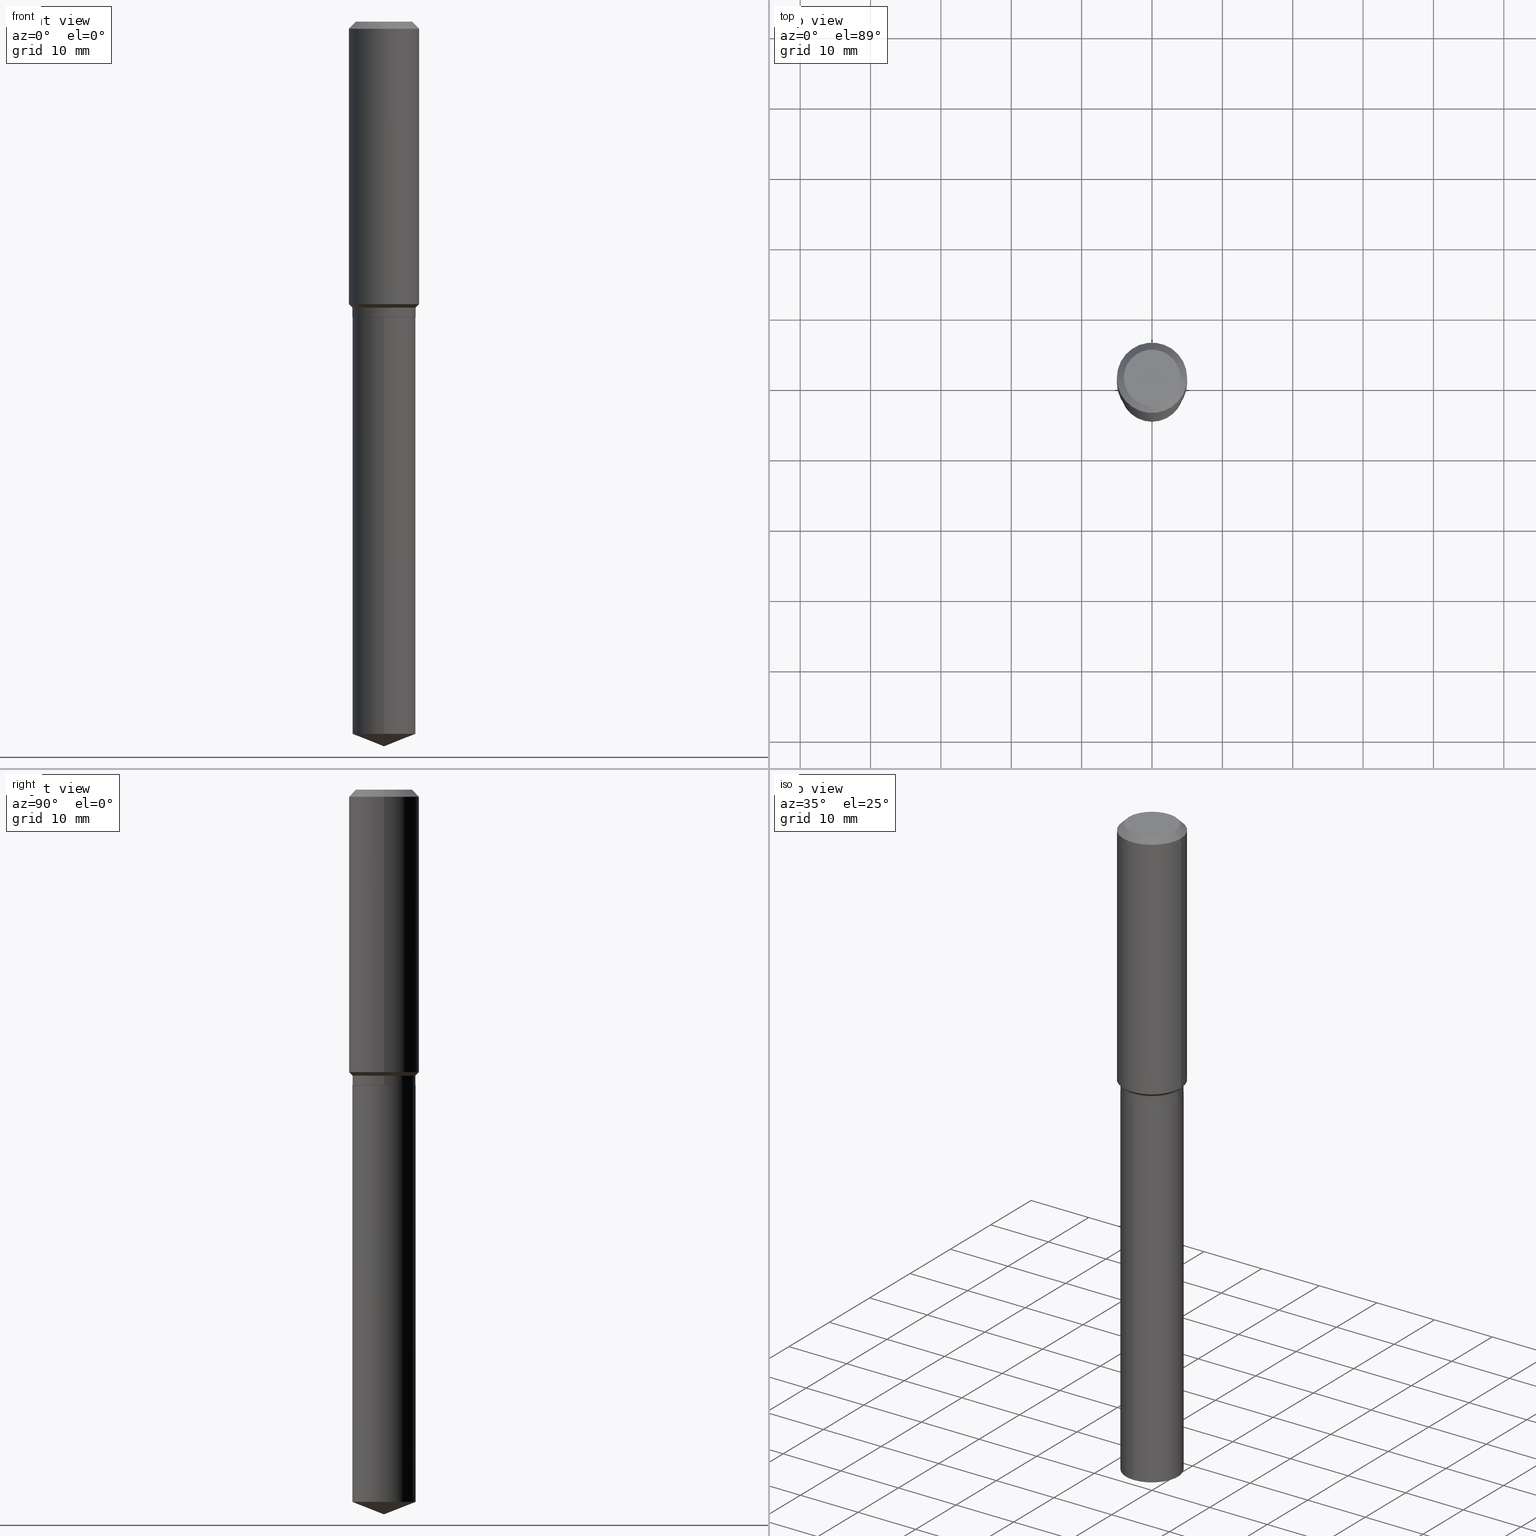
[diagram: canonical four-view strip — front | top / right | iso, engineering-drawing reading convention]
A machine part, canonical four-view strip (front | top / right | iso — engineering-drawing reading convention). The complete STEP part file that produces these views, byte-faithful:
ISO-10303-21;
HEADER;
FILE_DESCRIPTION (( 'STEP AP203' ),
    '1' );
FILE_NAME ('66563.STEP',
    '2024-04-25T01:01:27',
    ( '' ),
    ( '' ),
    'SwSTEP 2.0',
    'SolidWorks 2023',
    '' );
FILE_SCHEMA (( 'CONFIG_CONTROL_DESIGN' ));
ENDSEC;

DATA;
#1 = ORIENTED_EDGE ( 'NONE', *, *, #178, .T. ) ;
#2 = DIRECTION ( 'NONE',  ( -2.445468806185136597E-29, 3.491481338843145583E-15, 1.000000000000000000 ) ) ;
#3 = EDGE_CURVE ( 'NONE', #77, #448, #380, .T. ) ;
#4 = AXIS2_PLACEMENT_3D ( 'NONE', #382, #31, #233 ) ;
#5 = CARTESIAN_POINT ( 'NONE',  ( 1.258726456399115114E-15, 0.1771499999999861519, -3.985218759244814279 ) ) ;
#6 = ORIENTED_EDGE ( 'NONE', *, *, #159, .F. ) ;
#7 = CARTESIAN_POINT ( 'NONE',  ( 3.864329807533752585E-29, -5.517238811639938393E-15, -1.580200000000000049 ) ) ;
#8 = EDGE_CURVE ( 'NONE', #40, #281, #487, .T. ) ;
#9 = CARTESIAN_POINT ( 'NONE',  ( -0.1771500000000000019, 1.258726456399017493E-15, -8.713893512386565325E-30 ) ) ;
#10 = PERSON_AND_ORGANIZATION ( #150, #231 ) ;
#11 = LINE ( 'NONE', #387, #141 ) ;
#12 = AXIS2_PLACEMENT_3D ( 'NONE', #339, #135, #405 ) ;
#13 = EDGE_CURVE ( 'NONE', #16, #448, #262, .T. ) ;
#14 = PERSON_AND_ORGANIZATION ( #150, #231 ) ;
#15 = CALENDAR_DATE ( 2024, 24, 4 ) ;
#16 = VERTEX_POINT ( 'NONE', #193 ) ;
#17 = DIRECTION ( 'NONE',  ( -0.7071067811864267805, 7.493145998869918709E-15, 0.7071067811866682540 ) ) ;
#18 = FACE_OUTER_BOUND ( 'NONE', #263, .T. ) ;
#19 = DIRECTION ( 'NONE',  ( -2.445468806185136597E-29, 3.491481338843145583E-15, 1.000000000000000000 ) ) ;
#20 = EDGE_CURVE ( 'NONE', #321, #448, #410, .T. ) ;
#21 = DIRECTION ( 'NONE',  ( -6.497071151882121414E-15, -0.9304175679820246847, 0.3665012267242966360 ) ) ;
#22 = VECTOR ( 'NONE', #119, 39.37007874015748143 ) ;
#23 = CIRCLE ( 'NONE', #230, 0.1771500000000000019 ) ;
#24 = DIRECTION ( 'NONE',  ( 1.000000000000000000, -6.982962677686266711E-15, 4.876176775795935793E-29 ) ) ;
#25 = DIRECTION ( 'NONE',  ( -6.982962677686265922E-15, -1.000000000000000000, 3.084220145260246224E-15 ) ) ;
#26 = CARTESIAN_POINT ( 'NONE',  ( 9.627810689950954155E-31, -1.374596203102556547E-16, -0.03937000000000029365 ) ) ;
#27 = DIRECTION ( 'NONE',  ( -1.000000000000000000, 6.982962677686265922E-15, -4.876176775795935793E-29 ) ) ;
#28 = ADVANCED_FACE ( 'NONE', ( #376 ), #154, .F. ) ;
#29 = DIRECTION ( 'NONE',  ( 2.445490024045987214E-29, -3.491450953658761522E-15, -1.000000000000000000 ) ) ;
#30 = ORIENTED_EDGE ( 'NONE', *, *, #462, .F. ) ;
#31 = DIRECTION ( 'NONE',  ( -2.445468806185136597E-29, 3.491481338843145583E-15, 1.000000000000000000 ) ) ;
#32 = CC_DESIGN_APPROVAL ( #363, ( #35 ) ) ;
#33 = CONICAL_SURFACE ( 'NONE', #76, 0.1771500000000000019, 0.7853981633974518317 ) ;
#34 = ORIENTED_EDGE ( 'NONE', *, *, #13, .T. ) ;
#35 = SECURITY_CLASSIFICATION ( '', '', #404 ) ;
#36 = DIRECTION ( 'NONE',  ( -2.438088387897960049E-29, 3.491481338843145188E-15, 1.000000000000000000 ) ) ;
#37 = EDGE_LOOP ( 'NONE', ( #488, #41 ) ) ;
#38 = LINE ( 'NONE', #384, #181 ) ;
#39 = CIRCLE ( 'NONE', #105, 0.1771500000000000019 ) ;
#40 = VERTEX_POINT ( 'NONE', #412 ) ;
#41 = ORIENTED_EDGE ( 'NONE', *, *, #62, .F. ) ;
#42 = PERSON_AND_ORGANIZATION_ROLE ( 'creator' ) ;
#43 = DIRECTION ( 'NONE',  ( 1.000000000000000000, -6.982962677686266711E-15, 4.876176775795935793E-29 ) ) ;
#44 = VERTEX_POINT ( 'NONE', #286 ) ;
#45 = DIRECTION ( 'NONE',  ( 0.000000000000000000, 0.000000000000000000, 1.000000000000000000 ) ) ;
#46 = DIMENSIONAL_EXPONENTS ( 1.000000000000000000, 0.000000000000000000, 0.000000000000000000, 0.000000000000000000, 0.000000000000000000, 0.000000000000000000, 0.000000000000000000 ) ;
#47 = EDGE_LOOP ( 'NONE', ( #68, #453, #201, #153 ) ) ;
#48 = CIRCLE ( 'NONE', #386, 0.1771500000000000019 ) ;
#49 = AXIS2_PLACEMENT_3D ( 'NONE', #317, #103, #25 ) ;
#50 = ORIENTED_EDGE ( 'NONE', *, *, #106, .T. ) ;
#51 = PERSON_AND_ORGANIZATION_ROLE ( 'design_owner' ) ;
#52 = CARTESIAN_POINT ( 'NONE',  ( 9.916462662755118190E-29, -1.415783361708627607E-14, -4.054999999999999716 ) ) ;
#53 = CARTESIAN_POINT ( 'NONE',  ( 0.1968500000000000250, -1.487948651171581601E-15, -0.03937000000000029365 ) ) ;
#54 = FACE_OUTER_BOUND ( 'NONE', #236, .T. ) ;
#55 = PERSON_AND_ORGANIZATION ( #150, #231 ) ;
#56 = CIRCLE ( 'NONE', #237, 0.1968500000000000250 ) ;
#57 = PRODUCT_DEFINITION_SHAPE ( 'NONE', 'NONE',  #420 ) ;
#58 = PERSON_AND_ORGANIZATION ( #150, #231 ) ;
#59 = DIRECTION ( 'NONE',  ( 1.000000000000000000, -6.982962677686266711E-15, 0.000000000000000000 ) ) ;
#60 = DIRECTION ( 'NONE',  ( 1.000000000000000000, -6.982962677686265922E-15, 0.000000000000000000 ) ) ;
#61 = VERTEX_POINT ( 'NONE', #5 ) ;
#62 = EDGE_CURVE ( 'NONE', #300, #188, #318, .T. ) ;
#63 = DIRECTION ( 'NONE',  ( -2.445468806185136597E-29, 3.491481338843145583E-15, 1.000000000000000000 ) ) ;
#64 = FACE_OUTER_BOUND ( 'NONE', #47, .T. ) ;
#65 = CONICAL_SURFACE ( 'NONE', #114, 0.1771500000000000019, 0.7853981633974518317 ) ;
#66 = CARTESIAN_POINT ( 'NONE',  ( 3.912505543015600443E-29, -5.586020994015148789E-15, -1.599900000000000100 ) ) ;
#67 = AXIS2_PLACEMENT_3D ( 'NONE', #151, #266, #409 ) ;
#68 = ORIENTED_EDGE ( 'NONE', *, *, #159, .T. ) ;
#69 = EDGE_CURVE ( 'NONE', #482, #77, #278, .T. ) ;
#70 = CYLINDRICAL_SURFACE ( 'NONE', #81, 0.1968500000000001082 ) ;
#71 = VERTEX_POINT ( 'NONE', #454 ) ;
#72 = DIRECTION ( 'NONE',  ( -1.000000000000000000, 6.982962677686265922E-15, 0.000000000000000000 ) ) ;
#73 = CC_DESIGN_PERSON_AND_ORGANIZATION_ASSIGNMENT ( #139, #98, ( #280 ) ) ;
#74 = DIRECTION ( 'NONE',  ( -2.445468806185136597E-29, 3.491481338843145583E-15, 1.000000000000000000 ) ) ;
#75 = VECTOR ( 'NONE', #486, 39.37007874015748143 ) ;
#76 = AXIS2_PLACEMENT_3D ( 'NONE', #299, #398, #366 ) ;
#77 = VERTEX_POINT ( 'NONE', #393 ) ;
#78 = CARTESIAN_POINT ( 'NONE',  ( -0.1968500000000002192, -4.118535436296179028E-15, -1.580200000000000049 ) ) ;
#79 = EDGE_CURVE ( 'NONE', #61, #388, #11, .T. ) ;
#80 = CC_DESIGN_PERSON_AND_ORGANIZATION_ASSIGNMENT ( #91, #42, ( #420 ) ) ;
#81 = AXIS2_PLACEMENT_3D ( 'NONE', #455, #19, #24 ) ;
#82 = ADVANCED_FACE ( 'NONE', ( #125 ), #284, .T. ) ;
#83 = APPLICATION_CONTEXT ( 'configuration controlled 3d designs of mechanical parts and assemblies' ) ;
#84 = ORIENTED_EDGE ( 'NONE', *, *, #20, .F. ) ;
#85 = DIRECTION ( 'NONE',  ( 1.000000000000000000, -6.982962677686269866E-15, 0.000000000000000000 ) ) ;
#86 = DATE_AND_TIME ( #428, #441 ) ;
#87 = DIRECTION ( 'NONE',  ( 1.000000000000000000, -6.982962677686265922E-15, 0.000000000000000000 ) ) ;
#88 = APPROVAL ( #431, 'UNSPECIFIED' ) ;
#89 = ORIENTED_EDGE ( 'NONE', *, *, #79, .T. ) ;
#90 = DIRECTION ( 'NONE',  ( -2.445468806185136597E-29, 3.491481338843145583E-15, 1.000000000000000000 ) ) ;
#91 = PERSON_AND_ORGANIZATION ( #150, #231 ) ;
#92 = CYLINDRICAL_SURFACE ( 'NONE', #253, 0.1771500000000000019 ) ;
#93 = APPROVAL_DATE_TIME ( #362, #88 ) ;
#94 = ORIENTED_EDGE ( 'NONE', *, *, #241, .T. ) ;
#95 = ORIENTED_EDGE ( 'NONE', *, *, #113, .T. ) ;
#96 = AXIS2_PLACEMENT_3D ( 'NONE', #374, #338, #27 ) ;
#97 = DIRECTION ( 'NONE',  ( 1.000000000000000000, -6.982962677686265922E-15, 4.876223630392693006E-29 ) ) ;
#98 = PERSON_AND_ORGANIZATION_ROLE ( 'design_supplier' ) ;
#99 = EDGE_LOOP ( 'NONE', ( #109, #424, #1, #116 ) ) ;
#100 =( LENGTH_UNIT ( ) NAMED_UNIT ( * ) SI_UNIT ( $, .METRE. ) );
#101 = CARTESIAN_POINT ( 'NONE',  ( 4.042115389743411055E-29, -5.771069504973833690E-15, -1.652899999999999814 ) ) ;
#102 = CARTESIAN_POINT ( 'NONE',  ( 9.745777637762988078E-29, -1.391424607636795182E-14, -3.985218759244813391 ) ) ;
#103 = DIRECTION ( 'NONE',  ( -2.445490024045987495E-29, 3.491450953658761522E-15, 1.000000000000000000 ) ) ;
#104 = AXIS2_PLACEMENT_3D ( 'NONE', #7, #2, #87 ) ;
#105 = AXIS2_PLACEMENT_3D ( 'NONE', #477, #147, #145 ) ;
#106 = EDGE_CURVE ( 'NONE', #71, #61, #127, .T. ) ;
#107 = FACE_OUTER_BOUND ( 'NONE', #124, .T. ) ;
#108 = APPLICATION_CONTEXT ( 'configuration controlled 3d designs of mechanical parts and assemblies' ) ;
#109 = ORIENTED_EDGE ( 'NONE', *, *, #202, .F. ) ;
#110 = DIRECTION ( 'NONE',  ( -2.445490024045987495E-29, 3.491450953658761522E-15, 1.000000000000000000 ) ) ;
#111 = FACE_OUTER_BOUND ( 'NONE', #416, .T. ) ;
#112 = ADVANCED_FACE ( 'NONE', ( #356 ), #469, .T. ) ;
#113 = EDGE_CURVE ( 'NONE', #44, #321, #221, .T. ) ;
#114 = AXIS2_PLACEMENT_3D ( 'NONE', #66, #372, #337 ) ;
#115 = AXIS2_PLACEMENT_3D ( 'NONE', #346, #36, #478 ) ;
#116 = ORIENTED_EDGE ( 'NONE', *, *, #8, .F. ) ;
#117 = ORIENTED_EDGE ( 'NONE', *, *, #473, .T. ) ;
#118 =( CONVERSION_BASED_UNIT ( 'INCH', #176 ) LENGTH_UNIT ( ) NAMED_UNIT ( #46 ) );
#119 = DIRECTION ( 'NONE',  ( -0.7071067811865450192, 2.468850131082230634E-15, -0.7071067811865500152 ) ) ;
#120 = ORIENTED_EDGE ( 'NONE', *, *, #259, .T. ) ;
#121 = APPLICATION_PROTOCOL_DEFINITION ( 'international standard', 'config_control_design', 1994, #83 ) ;
#122 = CARTESIAN_POINT ( 'NONE',  ( 4.043338124146504977E-29, -5.772815245643255982E-15, -1.653399999999999981 ) ) ;
#123 = CIRCLE ( 'NONE', #222, 0.1766500000000000015 ) ;
#124 = EDGE_LOOP ( 'NONE', ( #408, #169, #274, #244 ) ) ;
#125 = FACE_OUTER_BOUND ( 'NONE', #275, .T. ) ;
#126 = APPROVAL_ROLE ( '' ) ;
#127 = LINE ( 'NONE', #52, #290 ) ;
#128 = DIRECTION ( 'NONE',  ( -2.445468806185136597E-29, 3.491481338843145583E-15, 1.000000000000000000 ) ) ;
#129 = ORIENTED_EDGE ( 'NONE', *, *, #259, .F. ) ;
#130 = UNCERTAINTY_MEASURE_WITH_UNIT (LENGTH_MEASURE( 1.000000000000000082E-05 ), #118, 'distance_accuracy_value', 'NONE');
#131 = VECTOR ( 'NONE', #471, 39.37007874015748143 ) ;
#132 = APPROVAL_PERSON_ORGANIZATION ( #10, #425, #126 ) ;
#133 = CARTESIAN_POINT ( 'NONE',  ( 3.864329807533752585E-29, -5.517238811639938393E-15, -1.580200000000000049 ) ) ;
#134 = DIRECTION ( 'NONE',  ( 1.000000000000000000, 0.000000000000000000, 0.000000000000000000 ) ) ;
#135 = DIRECTION ( 'NONE',  ( -2.445490024045987495E-29, 3.491450953658761522E-15, 1.000000000000000000 ) ) ;
#136 = DATE_TIME_ROLE ( 'classification_date' ) ;
#137 = LINE ( 'NONE', #373, #224 ) ;
#138 = CARTESIAN_POINT ( 'NONE',  ( -9.427742298522567634E-47, 1.346031739168368355E-32, 3.855188123715870730E-18 ) ) ;
#139 = PERSON_AND_ORGANIZATION ( #150, #231 ) ;
#140 = ORIENTED_EDGE ( 'NONE', *, *, #220, .T. ) ;
#141 = VECTOR ( 'NONE', #164, 39.37007874015748143 ) ;
#142 = FACE_OUTER_BOUND ( 'NONE', #225, .T. ) ;
#143 = CIRCLE ( 'NONE', #392, 0.1574800000000000089 ) ;
#144 = PERSON_AND_ORGANIZATION_ROLE ( 'classification_officer' ) ;
#145 = DIRECTION ( 'NONE',  ( -6.982962677686265922E-15, -1.000000000000000000, 3.084220145260246224E-15 ) ) ;
#146 = CARTESIAN_POINT ( 'NONE',  ( -1.237031838352081570E-15, -0.1771500000000057751, -1.653399999999999093 ) ) ;
#147 = DIRECTION ( 'NONE',  ( -2.445490024045987495E-29, 3.491450953658761522E-15, 1.000000000000000000 ) ) ;
#148 = ORIENTED_EDGE ( 'NONE', *, *, #383, .T. ) ;
#149 = CARTESIAN_POINT ( 'NONE',  ( -0.1766500000000000015, -4.514992275748927201E-15, -1.653399999999999981 ) ) ;
#150 = PERSON ( 'UNSPECIFIED', 'UNSPECIFIED', 'UNSPECIFIED', ('UNSPECIFIED'), ('UNSPECIFIED'), ('UNSPECIFIED') ) ;
#151 = CARTESIAN_POINT ( 'NONE',  ( 4.043338124146503856E-29, -5.772815245643255193E-15, -1.653399999999999537 ) ) ;
#152 = CARTESIAN_POINT ( 'NONE',  ( 4.043338124146503856E-29, -5.772815245643255193E-15, -1.653399999999999537 ) ) ;
#153 = ORIENTED_EDGE ( 'NONE', *, *, #473, .F. ) ;
#154 = PLANE ( 'NONE',  #203 ) ;
#155 = CIRCLE ( 'NONE', #67, 0.1771500000000000019 ) ;
#156 = ADVANCED_FACE ( 'NONE', ( #64 ), #65, .T. ) ;
#157 = EDGE_LOOP ( 'NONE', ( #95, #166, #377, #413 ) ) ;
#158 = ORIENTED_EDGE ( 'NONE', *, *, #234, .F. ) ;
#159 = EDGE_CURVE ( 'NONE', #463, #385, #48, .T. ) ;
#160 = AXIS2_PLACEMENT_3D ( 'NONE', #403, #252, #60 ) ;
#161 = ADVANCED_FACE ( 'NONE', ( #184 ), #305, .T. ) ;
#162 = AXIS2_PLACEMENT_3D ( 'NONE', #414, #74, #442 ) ;
#163 = CC_DESIGN_APPROVAL ( #88, ( #280 ) ) ;
#164 = DIRECTION ( 'NONE',  ( -2.445490024045987775E-29, 3.491450953658761522E-15, 1.000000000000000000 ) ) ;
#165 = EDGE_CURVE ( 'NONE', #448, #77, #56, .T. ) ;
#166 = ORIENTED_EDGE ( 'NONE', *, *, #20, .T. ) ;
#167 = APPLICATION_PROTOCOL_DEFINITION ( 'international standard', 'config_control_design', 1994, #108 ) ;
#168 = DIRECTION ( 'NONE',  ( -2.445468806185136597E-29, 3.491481338843145583E-15, 1.000000000000000000 ) ) ;
#169 = ORIENTED_EDGE ( 'NONE', *, *, #69, .T. ) ;
#170 = AXIS2_PLACEMENT_3D ( 'NONE', #223, #110, #315 ) ;
#171 = COORDINATED_UNIVERSAL_TIME_OFFSET ( 5, 0, .BEHIND. ) ;
#172 = DIRECTION ( 'NONE',  ( 1.000000000000000000, -6.982962677686265922E-15, 0.000000000000000000 ) ) ;
#173 = DIRECTION ( 'NONE',  ( 1.000000000000000000, -6.982962677686269866E-15, 0.000000000000000000 ) ) ;
#174 = APPROVAL_STATUS ( 'not_yet_approved' ) ;
#175 = ORIENTED_EDGE ( 'NONE', *, *, #202, .T. ) ;
#176 = LENGTH_MEASURE_WITH_UNIT ( LENGTH_MEASURE( 0.02539999999999999897 ), #100 );
#177 = LINE ( 'NONE', #218, #417 ) ;
#178 = EDGE_CURVE ( 'NONE', #188, #281, #215, .T. ) ;
#179 = AXIS2_PLACEMENT_3D ( 'NONE', #458, #128, #43 ) ;
#180 = DIRECTION ( 'NONE',  ( 1.000000000000000000, -6.982962677686266711E-15, 4.876176775795935793E-29 ) ) ;
#181 = VECTOR ( 'NONE', #226, 39.37007874015748143 ) ;
#182 = DIRECTION ( 'NONE',  ( 1.000000000000000000, -6.982962677686266711E-15, 0.000000000000000000 ) ) ;
#183 = ADVANCED_FACE ( 'NONE', ( #18 ), #33, .T. ) ;
#184 = FACE_OUTER_BOUND ( 'NONE', #361, .T. ) ;
#185 = DIRECTION ( 'NONE',  ( -2.445468806185136877E-29, 3.491481338843145188E-15, 1.000000000000000000 ) ) ;
#186 = DIRECTION ( 'NONE',  ( -2.445468806185136597E-29, 3.491481338843145583E-15, 1.000000000000000000 ) ) ;
#187 = DIRECTION ( 'NONE',  ( 6.982962677686265922E-15, 1.000000000000000000, -3.491450953658761522E-15 ) ) ;
#188 = VERTEX_POINT ( 'NONE', #468 ) ;
#189 = FACE_OUTER_BOUND ( 'NONE', #368, .T. ) ;
#190 = CIRCLE ( 'NONE', #421, 0.1771500000000000019 ) ;
#191 = CARTESIAN_POINT ( 'NONE',  ( 4.043338124146504977E-29, -5.772815245643255982E-15, -1.653399999999999981 ) ) ;
#192 = DIRECTION ( 'NONE',  ( -2.445490024045987495E-29, 3.491450953658761522E-15, 1.000000000000000000 ) ) ;
#193 = CARTESIAN_POINT ( 'NONE',  ( -0.1574800000000000089, 1.168406772637159618E-15, 3.855188123707939751E-18 ) ) ;
#194 = ORIENTED_EDGE ( 'NONE', *, *, #79, .F. ) ;
#195 = CONICAL_SURFACE ( 'NONE', #170, 99.94676754584011746, 1.195550537616119957 ) ;
#196 = ORIENTED_EDGE ( 'NONE', *, *, #479, .T. ) ;
#197 = EDGE_CURVE ( 'NONE', #188, #300, #123, .T. ) ;
#198 = COORDINATED_UNIVERSAL_TIME_OFFSET ( 5, 0, .BEHIND. ) ;
#199 = DIRECTION ( 'NONE',  ( 6.611014441532067378E-15, 0.9304175679820272382, 0.3665012267242900301 ) ) ;
#200 = DIRECTION ( 'NONE',  ( -2.445468806185136597E-29, 3.491481338843145583E-15, 1.000000000000000000 ) ) ;
#201 = ORIENTED_EDGE ( 'NONE', *, *, #113, .F. ) ;
#202 = EDGE_CURVE ( 'NONE', #300, #40, #309, .T. ) ;
#203 = AXIS2_PLACEMENT_3D ( 'NONE', #320, #29, #187 ) ;
#204 = PRODUCT_RELATED_PRODUCT_CATEGORY ( 'detail', '', ( #357 ) ) ;
#205 = ORIENTED_EDGE ( 'NONE', *, *, #241, .F. ) ;
#206 = MECHANICAL_CONTEXT ( 'NONE', #83, 'mechanical' ) ;
#207 = APPROVAL_STATUS ( 'not_yet_approved' ) ;
#208 = DIRECTION ( 'NONE',  ( 0.7071067811865450192, -7.319954787623246579E-15, -0.7071067811865500152 ) ) ;
#209 = PLANE ( 'NONE',  #96 ) ;
#210 = PERSON_AND_ORGANIZATION ( #150, #231 ) ;
#211 = CONICAL_SURFACE ( 'NONE', #435, 0.1766500000000000015, 0.7853981633972775267 ) ;
#212 = AXIS2_PLACEMENT_3D ( 'NONE', #289, #45, #134 ) ;
#213 = CARTESIAN_POINT ( 'NONE',  ( -0.1766500000000000015, -4.517641502923039190E-15, -1.653399999999999981 ) ) ;
#214 = DIRECTION ( 'NONE',  ( -2.445468806185136597E-29, 3.491481338843145583E-15, 1.000000000000000000 ) ) ;
#215 = LINE ( 'NONE', #466, #446 ) ;
#216 = EDGE_CURVE ( 'NONE', #385, #321, #332, .T. ) ;
#217 = ORIENTED_EDGE ( 'NONE', *, *, #415, .F. ) ;
#218 = CARTESIAN_POINT ( 'NONE',  ( 9.916391884284218527E-29, -1.415793409481399778E-14, -4.054999999999999716 ) ) ;
#219 = CARTESIAN_POINT ( 'NONE',  ( -1.237031838352081570E-15, -0.1771500000000057751, -1.653399999999999093 ) ) ;
#220 = EDGE_CURVE ( 'NONE', #242, #61, #273, .T. ) ;
#221 = CIRCLE ( 'NONE', #104, 0.1968500000000002192 ) ;
#222 = AXIS2_PLACEMENT_3D ( 'NONE', #258, #328, #173 ) ;
#223 = CARTESIAN_POINT ( 'NONE',  ( -8.636270783906479342E-28, 1.233008151069932431E-13, 35.31507874015748172 ) ) ;
#224 = VECTOR ( 'NONE', #185, 39.37007874015748143 ) ;
#225 = EDGE_LOOP ( 'NONE', ( #148, #353, #6, #444 ) ) ;
#226 = DIRECTION ( 'NONE',  ( -2.445468806185136877E-29, 3.491481338843145188E-15, 1.000000000000000000 ) ) ;
#227 = EDGE_LOOP ( 'NONE', ( #240, #327 ) ) ;
#228 = CYLINDRICAL_SURFACE ( 'NONE', #4, 0.1968500000000001082 ) ;
#229 = AXIS2_PLACEMENT_3D ( 'NONE', #101, #214, #475 ) ;
#230 = AXIS2_PLACEMENT_3D ( 'NONE', #445, #192, #378 ) ;
#231 = ORGANIZATION ( 'UNSPECIFIED', 'UNSPECIFIED', '' ) ;
#232 = CARTESIAN_POINT ( 'NONE',  ( -0.1968500000000001082, 1.398703375343757985E-15, -9.682923725166787881E-30 ) ) ;
#233 = DIRECTION ( 'NONE',  ( 1.000000000000000000, -6.982962677686266711E-15, 4.876176775795935793E-29 ) ) ;
#234 = EDGE_CURVE ( 'NONE', #40, #385, #467, .T. ) ;
#235 = ADVANCED_FACE ( 'NONE', ( #142 ), #92, .T. ) ;
#236 = EDGE_LOOP ( 'NONE', ( #239, #432 ) ) ;
#237 = AXIS2_PLACEMENT_3D ( 'NONE', #296, #395, #172 ) ;
#238 = LOCAL_TIME ( 21, 1, 27.00000000000000000, #334 ) ;
#239 = ORIENTED_EDGE ( 'NONE', *, *, #246, .T. ) ;
#240 = ORIENTED_EDGE ( 'NONE', *, *, #415, .T. ) ;
#241 = EDGE_CURVE ( 'NONE', #321, #44, #399, .T. ) ;
#242 = VERTEX_POINT ( 'NONE', #294 ) ;
#243 = CONICAL_SURFACE ( 'NONE', #336, 0.1968500000000000250, 0.7853981633974447263 ) ;
#244 = ORIENTED_EDGE ( 'NONE', *, *, #13, .F. ) ;
#245 =( NAMED_UNIT ( * ) PLANE_ANGLE_UNIT ( ) SI_UNIT ( $, .RADIAN. ) );
#246 = EDGE_CURVE ( 'NONE', #16, #482, #143, .T. ) ;
#247 = DIRECTION ( 'NONE',  ( 1.000000000000000000, -6.982962677686266711E-15, 0.000000000000000000 ) ) ;
#248 = CALENDAR_DATE ( 2024, 24, 4 ) ;
#249 = CARTESIAN_POINT ( 'NONE',  ( 0.000000000000000000, 0.000000000000000000, 0.000000000000000000 ) ) ;
#250 = SHAPE_DEFINITION_REPRESENTATION ( #57, #402 ) ;
#251 = FACE_OUTER_BOUND ( 'NONE', #279, .T. ) ;
#252 = DIRECTION ( 'NONE',  ( -2.445468806185136597E-29, 3.491481338843145583E-15, 1.000000000000000000 ) ) ;
#253 = AXIS2_PLACEMENT_3D ( 'NONE', #249, #168, #180 ) ;
#254 = EDGE_CURVE ( 'NONE', #71, #242, #177, .T. ) ;
#255 = DIRECTION ( 'NONE',  ( 0.7071067811865500152, -2.468850131082282699E-15, 0.7071067811865450192 ) ) ;
#256 = EDGE_LOOP ( 'NONE', ( #84, #94, #264, #472 ) ) ;
#257 = ORIENTED_EDGE ( 'NONE', *, *, #106, .F. ) ;
#258 = CARTESIAN_POINT ( 'NONE',  ( 4.043338124146504977E-29, -5.772815245643255982E-15, -1.653399999999999981 ) ) ;
#259 = EDGE_CURVE ( 'NONE', #385, #463, #190, .T. ) ;
#260 = PERSON_AND_ORGANIZATION_ROLE ( 'creator' ) ;
#261 = ADVANCED_FACE ( 'NONE', ( #54 ), #209, .F. ) ;
#262 = LINE ( 'NONE', #365, #22 ) ;
#263 = EDGE_LOOP ( 'NONE', ( #316, #120, #117, #205 ) ) ;
#264 = ORIENTED_EDGE ( 'NONE', *, *, #326, .T. ) ;
#265 = VECTOR ( 'NONE', #255, 39.37007874015748143 ) ;
#266 = DIRECTION ( 'NONE',  ( -2.445490024045987495E-29, 3.491450953658761522E-15, 1.000000000000000000 ) ) ;
#267 = ORIENTED_EDGE ( 'NONE', *, *, #333, .F. ) ;
#268 = DIRECTION ( 'NONE',  ( 1.000000000000000000, -6.982962677686269866E-15, 0.000000000000000000 ) ) ;
#269 = EDGE_LOOP ( 'NONE', ( #257, #345, #419 ) ) ;
#270 = CYLINDRICAL_SURFACE ( 'NONE', #370, 0.1771500000000000019 ) ;
#271 = AXIS2_PLACEMENT_3D ( 'NONE', #352, #426, #85 ) ;
#272 = ADVANCED_FACE ( 'NONE', ( #107 ), #243, .T. ) ;
#273 = CIRCLE ( 'NONE', #324, 0.1771500000000000019 ) ;
#274 = ORIENTED_EDGE ( 'NONE', *, *, #3, .T. ) ;
#275 = EDGE_LOOP ( 'NONE', ( #158, #459, #291, #129 ) ) ;
#276 = DIRECTION ( 'NONE',  ( 2.445468806185136597E-29, -3.491481338843145583E-15, -1.000000000000000000 ) ) ;
#277 = CC_DESIGN_DATE_AND_TIME_ASSIGNMENT ( #423, #367, ( #420 ) ) ;
#278 = LINE ( 'NONE', #53, #369 ) ;
#279 = EDGE_LOOP ( 'NONE', ( #322, #490, #34, #347 ) ) ;
#280 = PRODUCT_DEFINITION_FORMATION_WITH_SPECIFIED_SOURCE ( 'ANY', '', #357, .NOT_KNOWN. ) ;
#281 = VERTEX_POINT ( 'NONE', #485 ) ;
#282 = CALENDAR_DATE ( 2024, 24, 4 ) ;
#283 = CIRCLE ( 'NONE', #407, 0.1771500000000000019 ) ;
#284 = CYLINDRICAL_SURFACE ( 'NONE', #179, 0.1771500000000000019 ) ;
#285 = COORDINATED_UNIVERSAL_TIME_OFFSET ( 5, 0, .BEHIND. ) ;
#286 = CARTESIAN_POINT ( 'NONE',  ( 0.1968500000000002192, -6.891835014742481579E-15, -1.580200000000000049 ) ) ;
#287 = MANIFOLD_SOLID_BREP ( 'Body-Move/Copy2[1]', #427 ) ;
#288 = EDGE_CURVE ( 'NONE', #482, #16, #381, .T. ) ;
#289 = CARTESIAN_POINT ( 'NONE',  ( 0.000000000000000000, 0.000000000000000000, 0.000000000000000000 ) ) ;
#290 = VECTOR ( 'NONE', #199, 39.37007874015748854 ) ;
#291 = ORIENTED_EDGE ( 'NONE', *, *, #449, .T. ) ;
#292 = CC_DESIGN_APPROVAL ( #425, ( #420 ) ) ;
#293 = MANIFOLD_SOLID_BREP ( 'Body-Move/Copy2[2]', #344 ) ;
#294 = CARTESIAN_POINT ( 'NONE',  ( -1.237031838352024575E-15, -0.1771500000000139075, -3.985218759244812947 ) ) ;
#295 = APPROVAL_DATE_TIME ( #86, #425 ) ;
#296 = CARTESIAN_POINT ( 'NONE',  ( 9.627810689950954155E-31, -1.374596203102556547E-16, -0.03937000000000029365 ) ) ;
#297 = ADVANCED_FACE ( 'NONE', ( #418 ), #195, .T. ) ;
#298 = APPROVAL_DATE_TIME ( #330, #363 ) ;
#299 = CARTESIAN_POINT ( 'NONE',  ( 3.912505543015600443E-29, -5.586020994015148789E-15, -1.599900000000000100 ) ) ;
#300 = VERTEX_POINT ( 'NONE', #149 ) ;
#301 = DIRECTION ( 'NONE',  ( -1.000000000000000000, 6.982962677686265922E-15, 0.000000000000000000 ) ) ;
#302 = APPROVAL_ROLE ( '' ) ;
#303 = ORIENTED_EDGE ( 'NONE', *, *, #254, .F. ) ;
#304 = LINE ( 'NONE', #219, #131 ) ;
#305 = CONICAL_SURFACE ( 'NONE', #12, 99.94676754584011746, 1.195550537616119957 ) ;
#306 = ADVANCED_FACE ( 'NONE', ( #371 ), #211, .T. ) ;
#307 = ADVANCED_FACE ( 'NONE', ( #447 ), #341, .F. ) ;
#308 = CARTESIAN_POINT ( 'NONE',  ( 0.1574800000000000089, -1.284169937930321189E-15, 3.855188123724205385E-18 ) ) ;
#309 = LINE ( 'NONE', #213, #355 ) ;
#310 = DIRECTION ( 'NONE',  ( -2.445490024045987495E-29, 3.491450953658761522E-15, 1.000000000000000000 ) ) ;
#311 = AXIS2_PLACEMENT_3D ( 'NONE', #26, #340, #301 ) ;
#312 = CARTESIAN_POINT ( 'NONE',  ( 9.627810689950954155E-31, -1.374596203102556547E-16, -0.03937000000000029365 ) ) ;
#313 = LOCAL_TIME ( 21, 1, 27.00000000000000000, #198 ) ;
#314 = FACE_OUTER_BOUND ( 'NONE', #256, .T. ) ;
#315 = DIRECTION ( 'NONE',  ( -6.982962677686265133E-15, -1.000000000000000000, 3.498627837349999095E-15 ) ) ;
#316 = ORIENTED_EDGE ( 'NONE', *, *, #216, .F. ) ;
#317 = CARTESIAN_POINT ( 'NONE',  ( 4.043338124146503856E-29, -5.772815245643255193E-15, -1.653399999999999537 ) ) ;
#318 = CIRCLE ( 'NONE', #335, 0.1766500000000000015 ) ;
#319 = CC_DESIGN_PERSON_AND_ORGANIZATION_ASSIGNMENT ( #14, #144, ( #35 ) ) ;
#320 = CARTESIAN_POINT ( 'NONE',  ( 4.043338124146503856E-29, -5.772815245643255193E-15, -1.653399999999999537 ) ) ;
#321 = VERTEX_POINT ( 'NONE', #78 ) ;
#322 = ORIENTED_EDGE ( 'NONE', *, *, #69, .F. ) ;
#323 = ADVANCED_FACE ( 'NONE', ( #111 ), #411, .T. ) ;
#324 = AXIS2_PLACEMENT_3D ( 'NONE', #102, #406, #464 ) ;
#325 = ORIENTED_EDGE ( 'NONE', *, *, #462, .T. ) ;
#326 = EDGE_CURVE ( 'NONE', #44, #77, #38, .T. ) ;
#327 = ORIENTED_EDGE ( 'NONE', *, *, #333, .T. ) ;
#328 = DIRECTION ( 'NONE',  ( -2.445468806185136597E-29, 3.491481338843145583E-15, 1.000000000000000000 ) ) ;
#329 = CARTESIAN_POINT ( 'NONE',  ( -0.1771500000000000019, -4.327294537616131099E-15, -1.599900000000000100 ) ) ;
#330 = DATE_AND_TIME ( #359, #379 ) ;
#331 = DIRECTION ( 'NONE',  ( 0.7071067811864267805, -2.468850131080992517E-15, 0.7071067811866682540 ) ) ;
#332 = LINE ( 'NONE', #329, #451 ) ;
#333 = EDGE_CURVE ( 'NONE', #388, #390, #23, .T. ) ;
#334 = COORDINATED_UNIVERSAL_TIME_OFFSET ( 5, 0, .BEHIND. ) ;
#335 = AXIS2_PLACEMENT_3D ( 'NONE', #122, #200, #354 ) ;
#336 = AXIS2_PLACEMENT_3D ( 'NONE', #312, #276, #72 ) ;
#337 = DIRECTION ( 'NONE',  ( 1.000000000000000000, -6.982962677686266711E-15, 0.000000000000000000 ) ) ;
#338 = DIRECTION ( 'NONE',  ( 2.438088387897960049E-29, -3.491481338843145188E-15, -1.000000000000000000 ) ) ;
#339 = CARTESIAN_POINT ( 'NONE',  ( -8.636270783906479342E-28, 1.233008151069932431E-13, 35.31507874015748172 ) ) ;
#340 = DIRECTION ( 'NONE',  ( 2.445468806185136597E-29, -3.491481338843145583E-15, -1.000000000000000000 ) ) ;
#341 = PLANE ( 'NONE',  #115 ) ;
#342 = CC_DESIGN_DATE_AND_TIME_ASSIGNMENT ( #465, #136, ( #35 ) ) ;
#343 = LOCAL_TIME ( 21, 1, 27.00000000000000000, #171 ) ;
#344 = CLOSED_SHELL ( 'NONE', ( #112, #272, #375, #156, #235, #82, #183, #443, #456, #261, #307, #306 ) ) ;
#345 = ORIENTED_EDGE ( 'NONE', *, *, #254, .T. ) ;
#346 = CARTESIAN_POINT ( 'NONE',  ( 2.257835294075184018E-29, -8.329756922815342463E-15, -1.653399999999999981 ) ) ;
#347 = ORIENTED_EDGE ( 'NONE', *, *, #165, .T. ) ;
#348 = FACE_OUTER_BOUND ( 'NONE', #157, .T. ) ;
#349 = ORIENTED_EDGE ( 'NONE', *, *, #383, .F. ) ;
#350 = DIRECTION ( 'NONE',  ( -2.445468806185136597E-29, 3.491481338843145583E-15, 1.000000000000000000 ) ) ;
#351 = ORIENTED_EDGE ( 'NONE', *, *, #178, .F. ) ;
#352 = CARTESIAN_POINT ( 'NONE',  ( 4.043338124146504977E-29, -5.772815245643255982E-15, -1.653399999999999981 ) ) ;
#353 = ORIENTED_EDGE ( 'NONE', *, *, #234, .T. ) ;
#354 = DIRECTION ( 'NONE',  ( 1.000000000000000000, -6.982962677686269866E-15, 0.000000000000000000 ) ) ;
#355 = VECTOR ( 'NONE', #17, 39.37007874015748143 ) ;
#356 = FACE_OUTER_BOUND ( 'NONE', #401, .T. ) ;
#357 = PRODUCT ( '66563', '66563', '', ( #206 ) ) ;
#358 = DIRECTION ( 'NONE',  ( -0.7071067811865500152, 7.493145998870363626E-15, 0.7071067811865450192 ) ) ;
#359 = CALENDAR_DATE ( 2024, 24, 4 ) ;
#360 = CARTESIAN_POINT ( 'NONE',  ( 3.912505543015600443E-29, -5.586020994015148789E-15, -1.599900000000000100 ) ) ;
#361 = EDGE_LOOP ( 'NONE', ( #303, #50, #450 ) ) ;
#362 = DATE_AND_TIME ( #248, #343 ) ;
#363 = APPROVAL ( #174, 'UNSPECIFIED' ) ;
#364 = ORIENTED_EDGE ( 'NONE', *, *, #197, .T. ) ;
#365 = CARTESIAN_POINT ( 'NONE',  ( -0.1968500000000000250, 1.237136582792286225E-15, -0.03937000000000029365 ) ) ;
#366 = DIRECTION ( 'NONE',  ( 1.000000000000000000, -6.982962677686266711E-15, 0.000000000000000000 ) ) ;
#367 = DATE_TIME_ROLE ( 'creation_date' ) ;
#368 = EDGE_LOOP ( 'NONE', ( #140, #89, #217, #30 ) ) ;
#369 = VECTOR ( 'NONE', #208, 39.37007874015748143 ) ;
#370 = AXIS2_PLACEMENT_3D ( 'NONE', #152, #310, #440 ) ;
#371 = FACE_OUTER_BOUND ( 'NONE', #99, .T. ) ;
#372 = DIRECTION ( 'NONE',  ( -2.445468806185136597E-29, 3.491481338843145583E-15, 1.000000000000000000 ) ) ;
#373 = CARTESIAN_POINT ( 'NONE',  ( 0.1771500000000000019, -1.237031838352122197E-15, 8.638147158322499960E-30 ) ) ;
#374 = CARTESIAN_POINT ( 'NONE',  ( -4.713871149261283817E-47, 6.730158695841841775E-33, 1.927594061857935365E-18 ) ) ;
#375 = ADVANCED_FACE ( 'NONE', ( #348 ), #228, .T. ) ;
#376 = FACE_OUTER_BOUND ( 'NONE', #227, .T. ) ;
#377 = ORIENTED_EDGE ( 'NONE', *, *, #3, .F. ) ;
#378 = DIRECTION ( 'NONE',  ( -6.982962677686265922E-15, -1.000000000000000000, 3.084220145260246224E-15 ) ) ;
#379 = LOCAL_TIME ( 21, 1, 27.00000000000000000, #394 ) ;
#380 = CIRCLE ( 'NONE', #160, 0.1968500000000000250 ) ;
#381 = CIRCLE ( 'NONE', #162, 0.1574800000000000089 ) ;
#382 = CARTESIAN_POINT ( 'NONE',  ( 0.000000000000000000, 0.000000000000000000, 0.000000000000000000 ) ) ;
#383 = EDGE_CURVE ( 'NONE', #281, #40, #283, .T. ) ;
#384 = CARTESIAN_POINT ( 'NONE',  ( 0.1968500000000001082, -1.374596203102542397E-15, 9.598753983154305062E-30 ) ) ;
#385 = VERTEX_POINT ( 'NONE', #483 ) ;
#386 = AXIS2_PLACEMENT_3D ( 'NONE', #360, #63, #59 ) ;
#387 = CARTESIAN_POINT ( 'NONE',  ( 1.258726456399057922E-15, 0.1771499999999942565, -1.653400000000000203 ) ) ;
#388 = VERTEX_POINT ( 'NONE', #476 ) ;
#389 =( NAMED_UNIT ( * ) SI_UNIT ( $, .STERADIAN. ) SOLID_ANGLE_UNIT ( ) );
#390 = VERTEX_POINT ( 'NONE', #146 ) ;
#391 = PERSON_AND_ORGANIZATION ( #150, #231 ) ;
#392 = AXIS2_PLACEMENT_3D ( 'NONE', #138, #434, #97 ) ;
#393 = CARTESIAN_POINT ( 'NONE',  ( 0.1968500000000000250, -1.512055823412797189E-15, -0.03937000000000029365 ) ) ;
#394 = COORDINATED_UNIVERSAL_TIME_OFFSET ( 5, 0, .BEHIND. ) ;
#395 = DIRECTION ( 'NONE',  ( -2.445468806185136597E-29, 3.491481338843145583E-15, 1.000000000000000000 ) ) ;
#396 = ADVANCED_FACE ( 'NONE', ( #189 ), #270, .T. ) ;
#397 = DIRECTION ( 'NONE',  ( 1.000000000000000000, -6.982962677686265922E-15, 0.000000000000000000 ) ) ;
#398 = DIRECTION ( 'NONE',  ( -2.445468806185136597E-29, 3.491481338843145583E-15, 1.000000000000000000 ) ) ;
#399 = CIRCLE ( 'NONE', #470, 0.1968500000000002192 ) ;
#400 = LINE ( 'NONE', #436, #265 ) ;
#401 = EDGE_LOOP ( 'NONE', ( #364, #175, #349, #351 ) ) ;
#402 = ADVANCED_BREP_SHAPE_REPRESENTATION ( '66563', ( #287, #293, #212 ), #437 ) ;
#403 = CARTESIAN_POINT ( 'NONE',  ( 9.627810689950954155E-31, -1.374596203102556547E-16, -0.03937000000000029365 ) ) ;
#404 = SECURITY_CLASSIFICATION_LEVEL ( 'unclassified' ) ;
#405 = DIRECTION ( 'NONE',  ( -6.982962677686265133E-15, -1.000000000000000000, 3.498627837349999095E-15 ) ) ;
#406 = DIRECTION ( 'NONE',  ( -2.445490024045987495E-29, 3.491450953658761522E-15, 1.000000000000000000 ) ) ;
#407 = AXIS2_PLACEMENT_3D ( 'NONE', #484, #350, #182 ) ;
#408 = ORIENTED_EDGE ( 'NONE', *, *, #288, .F. ) ;
#409 = DIRECTION ( 'NONE',  ( -6.982962677686265922E-15, -1.000000000000000000, 3.084220145260246224E-15 ) ) ;
#410 = LINE ( 'NONE', #232, #75 ) ;
#411 = CYLINDRICAL_SURFACE ( 'NONE', #49, 0.1771500000000000019 ) ;
#412 = CARTESIAN_POINT ( 'NONE',  ( -0.1771500000000000019, -4.419818793095473155E-15, -1.652899999999999814 ) ) ;
#413 = ORIENTED_EDGE ( 'NONE', *, *, #326, .F. ) ;
#414 = CARTESIAN_POINT ( 'NONE',  ( -9.427742298522567634E-47, 1.346031739168368355E-32, 3.855188123715870730E-18 ) ) ;
#415 = EDGE_CURVE ( 'NONE', #390, #388, #155, .T. ) ;
#416 = EDGE_LOOP ( 'NONE', ( #194, #196, #325, #267 ) ) ;
#417 = VECTOR ( 'NONE', #21, 39.37007874015748854 ) ;
#418 = FACE_OUTER_BOUND ( 'NONE', #269, .T. ) ;
#419 = ORIENTED_EDGE ( 'NONE', *, *, #479, .F. ) ;
#420 = PRODUCT_DEFINITION ( 'UNKNOWN', '', #280, #429 ) ;
#421 = AXIS2_PLACEMENT_3D ( 'NONE', #430, #90, #247 ) ;
#422 = APPROVAL_PERSON_ORGANIZATION ( #55, #88, #439 ) ;
#423 = DATE_AND_TIME ( #282, #313 ) ;
#424 = ORIENTED_EDGE ( 'NONE', *, *, #62, .T. ) ;
#425 = APPROVAL ( #207, 'UNSPECIFIED' ) ;
#426 = DIRECTION ( 'NONE',  ( -2.445468806185136597E-29, 3.491481338843145583E-15, 1.000000000000000000 ) ) ;
#427 = CLOSED_SHELL ( 'NONE', ( #396, #161, #297, #323, #28 ) ) ;
#428 = CALENDAR_DATE ( 2024, 24, 4 ) ;
#429 = DESIGN_CONTEXT ( 'detailed design', #108, 'design' ) ;
#430 = CARTESIAN_POINT ( 'NONE',  ( 3.912505543015600443E-29, -5.586020994015148789E-15, -1.599900000000000100 ) ) ;
#431 = APPROVAL_STATUS ( 'not_yet_approved' ) ;
#432 = ORIENTED_EDGE ( 'NONE', *, *, #288, .T. ) ;
#433 = CARTESIAN_POINT ( 'NONE',  ( 0.1771500000000000019, -6.823052832367271183E-15, -1.599900000000000100 ) ) ;
#434 = DIRECTION ( 'NONE',  ( -2.445468806185136597E-29, 3.491481338843145583E-15, 1.000000000000000000 ) ) ;
#435 = AXIS2_PLACEMENT_3D ( 'NONE', #191, #186, #268 ) ;
#436 = CARTESIAN_POINT ( 'NONE',  ( 0.1771500000000000019, -6.823052832367271183E-15, -1.599900000000000100 ) ) ;
#437 =( GEOMETRIC_REPRESENTATION_CONTEXT ( 3 ) GLOBAL_UNCERTAINTY_ASSIGNED_CONTEXT ( ( #130 ) ) GLOBAL_UNIT_ASSIGNED_CONTEXT ( ( #118, #245, #389 ) ) REPRESENTATION_CONTEXT ( 'NONE', 'WORKASPACE' ) );
#438 = DIRECTION ( 'NONE',  ( -2.445468806185136597E-29, 3.491481338843145583E-15, 1.000000000000000000 ) ) ;
#439 = APPROVAL_ROLE ( '' ) ;
#440 = DIRECTION ( 'NONE',  ( -6.982962677686265922E-15, -1.000000000000000000, 3.084220145260246224E-15 ) ) ;
#441 = LOCAL_TIME ( 21, 1, 27.00000000000000000, #285 ) ;
#442 = DIRECTION ( 'NONE',  ( 1.000000000000000000, -6.982962677686265922E-15, 4.876223630392693006E-29 ) ) ;
#443 = ADVANCED_FACE ( 'NONE', ( #314 ), #70, .T. ) ;
#444 = ORIENTED_EDGE ( 'NONE', *, *, #449, .F. ) ;
#445 = CARTESIAN_POINT ( 'NONE',  ( 4.043338124146503856E-29, -5.772815245643255193E-15, -1.653399999999999537 ) ) ;
#446 = VECTOR ( 'NONE', #331, 39.37007874015748143 ) ;
#447 = FACE_OUTER_BOUND ( 'NONE', #37, .T. ) ;
#448 = VERTEX_POINT ( 'NONE', #474 ) ;
#449 = EDGE_CURVE ( 'NONE', #281, #463, #137, .T. ) ;
#450 = ORIENTED_EDGE ( 'NONE', *, *, #220, .F. ) ;
#451 = VECTOR ( 'NONE', #358, 39.37007874015748143 ) ;
#452 = CC_DESIGN_SECURITY_CLASSIFICATION ( #35, ( #280 ) ) ;
#453 = ORIENTED_EDGE ( 'NONE', *, *, #216, .T. ) ;
#454 = CARTESIAN_POINT ( 'NONE',  ( 9.916462047506479508E-29, -1.415783361708627607E-14, -4.054999999999999716 ) ) ;
#455 = CARTESIAN_POINT ( 'NONE',  ( 0.000000000000000000, 0.000000000000000000, 0.000000000000000000 ) ) ;
#456 = ADVANCED_FACE ( 'NONE', ( #251 ), #461, .T. ) ;
#457 = CC_DESIGN_PERSON_AND_ORGANIZATION_ASSIGNMENT ( #391, #51, ( #357 ) ) ;
#458 = CARTESIAN_POINT ( 'NONE',  ( 0.000000000000000000, 0.000000000000000000, 0.000000000000000000 ) ) ;
#459 = ORIENTED_EDGE ( 'NONE', *, *, #8, .T. ) ;
#460 = DIRECTION ( 'NONE',  ( -2.445468806185136877E-29, 3.491481338843145188E-15, 1.000000000000000000 ) ) ;
#461 = CONICAL_SURFACE ( 'NONE', #311, 0.1968500000000000250, 0.7853981633974447263 ) ;
#462 = EDGE_CURVE ( 'NONE', #242, #390, #304, .T. ) ;
#463 = VERTEX_POINT ( 'NONE', #433 ) ;
#464 = DIRECTION ( 'NONE',  ( -6.982962677686265922E-15, -1.000000000000000000, 3.084220145260246224E-15 ) ) ;
#465 = DATE_AND_TIME ( #15, #238 ) ;
#466 = CARTESIAN_POINT ( 'NONE',  ( 0.1766500000000000015, -7.006355602656536158E-15, -1.653399999999999981 ) ) ;
#467 = LINE ( 'NONE', #9, #480 ) ;
#468 = CARTESIAN_POINT ( 'NONE',  ( 0.1766500000000000015, -7.006355602656536158E-15, -1.653399999999999981 ) ) ;
#469 = CONICAL_SURFACE ( 'NONE', #271, 0.1766500000000000015, 0.7853981633972775267 ) ;
#470 = AXIS2_PLACEMENT_3D ( 'NONE', #133, #438, #397 ) ;
#471 = DIRECTION ( 'NONE',  ( -2.445490024045987775E-29, 3.491450953658761522E-15, 1.000000000000000000 ) ) ;
#472 = ORIENTED_EDGE ( 'NONE', *, *, #165, .F. ) ;
#473 = EDGE_CURVE ( 'NONE', #463, #44, #400, .T. ) ;
#474 = CARTESIAN_POINT ( 'NONE',  ( -0.1968500000000000250, -1.428645840631338608E-15, -0.03937000000000029365 ) ) ;
#475 = DIRECTION ( 'NONE',  ( 1.000000000000000000, -6.982962677686266711E-15, 0.000000000000000000 ) ) ;
#476 = CARTESIAN_POINT ( 'NONE',  ( 1.258726456399115114E-15, 0.1771499999999942565, -1.653400000000000203 ) ) ;
#477 = CARTESIAN_POINT ( 'NONE',  ( 9.745777637762988078E-29, -1.391424607636795182E-14, -3.985218759244813391 ) ) ;
#478 = DIRECTION ( 'NONE',  ( 1.000000000000000000, -6.982962677686265922E-15, 4.876176775795935793E-29 ) ) ;
#479 = EDGE_CURVE ( 'NONE', #61, #242, #39, .T. ) ;
#480 = VECTOR ( 'NONE', #460, 39.37007874015748143 ) ;
#481 = APPROVAL_PERSON_ORGANIZATION ( #210, #363, #302 ) ;
#482 = VERTEX_POINT ( 'NONE', #308 ) ;
#483 = CARTESIAN_POINT ( 'NONE',  ( -0.1771500000000000019, -4.419818793095473155E-15, -1.599900000000000100 ) ) ;
#484 = CARTESIAN_POINT ( 'NONE',  ( 4.042115389743411055E-29, -5.771069504973833690E-15, -1.652899999999999814 ) ) ;
#485 = CARTESIAN_POINT ( 'NONE',  ( 0.1771500000000000019, -7.008101343325956083E-15, -1.652899999999999814 ) ) ;
#486 = DIRECTION ( 'NONE',  ( -2.445468806185136877E-29, 3.491481338843145188E-15, 1.000000000000000000 ) ) ;
#487 = CIRCLE ( 'NONE', #229, 0.1771500000000000019 ) ;
#488 = ORIENTED_EDGE ( 'NONE', *, *, #197, .F. ) ;
#489 = CC_DESIGN_PERSON_AND_ORGANIZATION_ASSIGNMENT ( #58, #260, ( #280 ) ) ;
#490 = ORIENTED_EDGE ( 'NONE', *, *, #246, .F. ) ;
ENDSEC;
END-ISO-10303-21;
